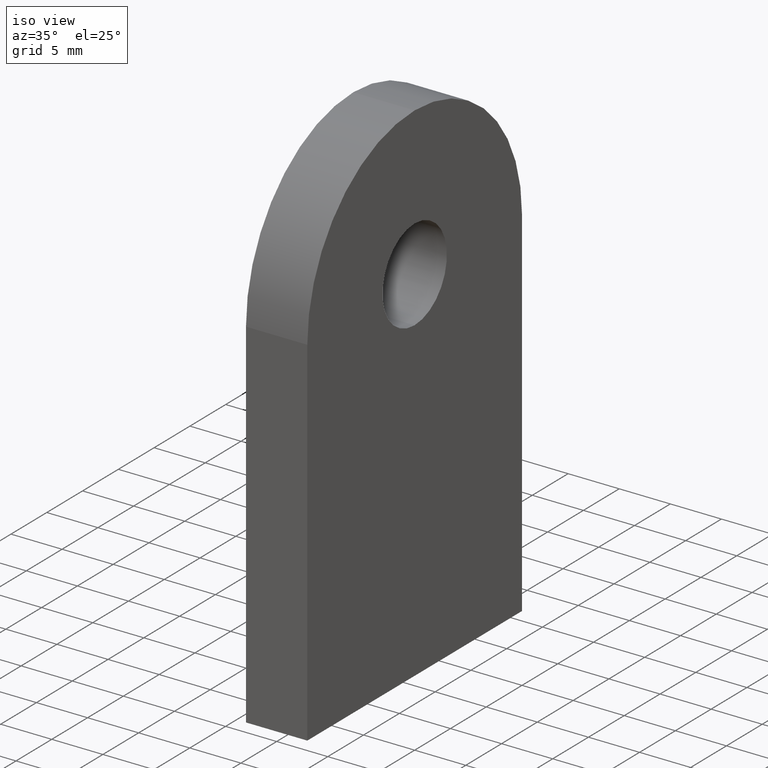
[diagram: clean part render]
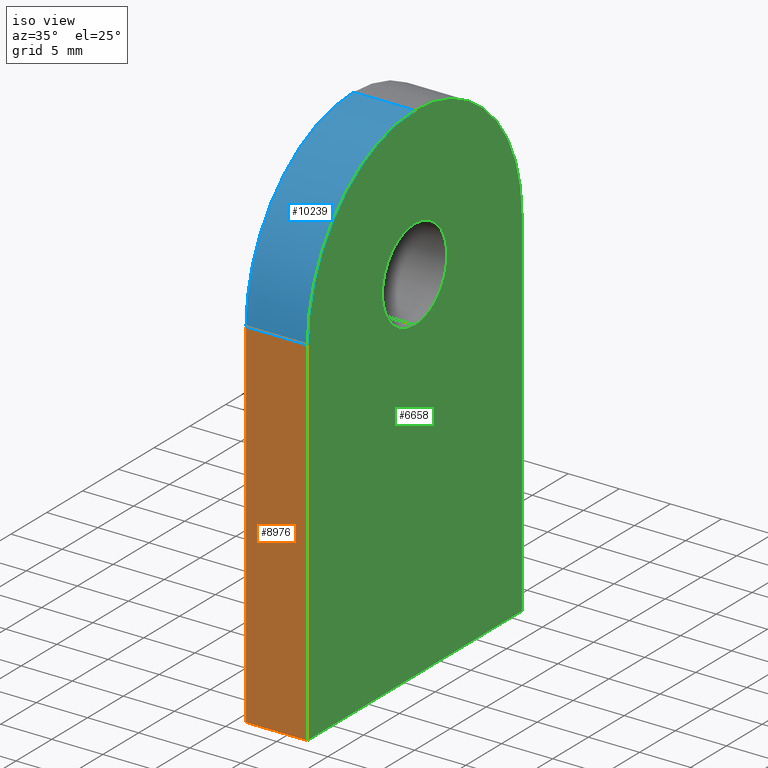
[diagram: same view with three faces highlighted in distinct colors, each labeled with its STEP entity id]
A machine part, iso view with three faces highlighted in distinct colors.
Their STEP definitions:

[orange] entity #8976 — the highlighted planar face has unit normal (0, -1, 0).
#136 = VERTEX_POINT ( 'NONE', #8477 ) ;
#283 = EDGE_CURVE ( 'NONE', #136, #7405, #11084, .T. ) ;
#911 = VECTOR ( 'NONE', #9757, 1000.000000000000000 ) ;
#1063 = DIRECTION ( 'NONE',  ( -1.000000000000000000, -0.0000000000000000000, -0.0000000000000000000 ) ) ;
#1548 = DIRECTION ( 'NONE',  ( 0.0000000000000000000, -4.956352788505162800E-017, -1.000000000000000000 ) ) ;
#1628 = VECTOR ( 'NONE', #1063, 1000.000000000000000 ) ;
#1679 = DIRECTION ( 'NONE',  ( 0.0000000000000000000, -1.000000000000000000, 4.956352788505162800E-017 ) ) ;
#3079 = VECTOR ( 'NONE', #11183, 1000.000000000000000 ) ;
#3239 = LINE ( 'NONE', #5498, #10585 ) ;
#3256 = ORIENTED_EDGE ( 'NONE', *, *, #9315, .F. ) ;
#3283 = EDGE_CURVE ( 'NONE', #6825, #7405, #3239, .T. ) ;
#3591 = DIRECTION ( 'NONE',  ( 0.0000000000000000000, 4.956352788505163400E-017, 1.000000000000000000 ) ) ;
#3858 = EDGE_CURVE ( 'NONE', #7786, #136, #10735, .T. ) ;
#4113 = CARTESIAN_POINT ( 'NONE',  ( -3.000000000000000000, -15.00000000000000000, -3.061616997868383000E-015 ) ) ;
#4500 = CARTESIAN_POINT ( 'NONE',  ( 3.000000000000000000, -15.00000000000000000, -3.061616997868383000E-015 ) ) ;
#5009 = CARTESIAN_POINT ( 'NONE',  ( 3.000000000000000000, -15.00000000000000000, -3.061616997868383000E-015 ) ) ;
#5133 = EDGE_LOOP ( 'NONE', ( #8323, #3256, #8966, #10580 ) ) ;
#5498 = CARTESIAN_POINT ( 'NONE',  ( -3.000000000000000000, -15.00000000000000000, -3.061616997868383000E-015 ) ) ;
#6825 = VERTEX_POINT ( 'NONE', #4113 ) ;
#6864 = CARTESIAN_POINT ( 'NONE',  ( 3.000000000000000000, -15.00000000000000000, -3.061616997868383000E-015 ) ) ;
#6961 = AXIS2_PLACEMENT_3D ( 'NONE', #8291, #1679, #1548 ) ;
#7405 = VERTEX_POINT ( 'NONE', #11460 ) ;
#7770 = CARTESIAN_POINT ( 'NONE',  ( 3.000000000000000000, -14.99999999999999800, 34.99999999999999300 ) ) ;
#7786 = VERTEX_POINT ( 'NONE', #5009 ) ;
#7967 = FACE_OUTER_BOUND ( 'NONE', #5133, .T. ) ;
#8291 = CARTESIAN_POINT ( 'NONE',  ( 3.000000000000000000, -15.00000000000000000, -3.061616997868383000E-015 ) ) ;
#8323 = ORIENTED_EDGE ( 'NONE', *, *, #3283, .F. ) ;
#8477 = CARTESIAN_POINT ( 'NONE',  ( 3.000000000000000000, -14.99999999999999800, 34.99999999999999300 ) ) ;
#8966 = ORIENTED_EDGE ( 'NONE', *, *, #3858, .T. ) ;
#8976 = ADVANCED_FACE ( 'NONE', ( #7967 ), #10143, .T. ) ;
#9018 = LINE ( 'NONE', #6864, #911 ) ;
#9315 = EDGE_CURVE ( 'NONE', #7786, #6825, #9018, .T. ) ;
#9757 = DIRECTION ( 'NONE',  ( -1.000000000000000000, -0.0000000000000000000, -0.0000000000000000000 ) ) ;
#10143 = PLANE ( 'NONE',  #6961 ) ;
#10580 = ORIENTED_EDGE ( 'NONE', *, *, #283, .T. ) ;
#10585 = VECTOR ( 'NONE', #3591, 1000.000000000000000 ) ;
#10735 = LINE ( 'NONE', #4500, #3079 ) ;
#11084 = LINE ( 'NONE', #7770, #1628 ) ;
#11183 = DIRECTION ( 'NONE',  ( 0.0000000000000000000, 4.956352788505163400E-017, 1.000000000000000000 ) ) ;
#11460 = CARTESIAN_POINT ( 'NONE',  ( -3.000000000000000000, -14.99999999999999800, 34.99999999999999300 ) ) ;

[blue] entity #10239 — the highlighted cylindrical surface (partial cylindrical patch) has radius 15 mm, axis along (-1, -0, -0).
#136 = VERTEX_POINT ( 'NONE', #8477 ) ;
#283 = EDGE_CURVE ( 'NONE', #136, #7405, #11084, .T. ) ;
#610 = EDGE_LOOP ( 'NONE', ( #1114, #3165, #4184, #2729 ) ) ;
#755 = CARTESIAN_POINT ( 'NONE',  ( 3.000000000000000000, 0.0000000000000000000, 49.99999999999999300 ) ) ;
#1063 = DIRECTION ( 'NONE',  ( -1.000000000000000000, -0.0000000000000000000, -0.0000000000000000000 ) ) ;
#1114 = ORIENTED_EDGE ( 'NONE', *, *, #11859, .T. ) ;
#1628 = VECTOR ( 'NONE', #1063, 1000.000000000000000 ) ;
#1865 = CARTESIAN_POINT ( 'NONE',  ( 3.000000000000000000, 0.0000000000000000000, 49.99999999999999300 ) ) ;
#2729 = ORIENTED_EDGE ( 'NONE', *, *, #283, .F. ) ;
#2930 = CIRCLE ( 'NONE', #10595, 15.00000000000000000 ) ;
#3165 = ORIENTED_EDGE ( 'NONE', *, *, #6086, .T. ) ;
#3587 = DIRECTION ( 'NONE',  ( -1.000000000000000000, -0.0000000000000000000, 0.0000000000000000000 ) ) ;
#3801 = DIRECTION ( 'NONE',  ( -1.000000000000000000, -0.0000000000000000000, -0.0000000000000000000 ) ) ;
#3835 = CIRCLE ( 'NONE', #6700, 15.00000000000000000 ) ;
#3842 = AXIS2_PLACEMENT_3D ( 'NONE', #4424, #7346, #11194 ) ;
#4053 = DIRECTION ( 'NONE',  ( -1.000000000000000000, -0.0000000000000000000, 0.0000000000000000000 ) ) ;
#4184 = ORIENTED_EDGE ( 'NONE', *, *, #4347, .F. ) ;
#4347 = EDGE_CURVE ( 'NONE', #7405, #5122, #3835, .T. ) ;
#4424 = CARTESIAN_POINT ( 'NONE',  ( 3.000000000000000000, 0.0000000000000000000, 34.99999999999999300 ) ) ;
#5122 = VERTEX_POINT ( 'NONE', #7254 ) ;
#5773 = VECTOR ( 'NONE', #3801, 1000.000000000000000 ) ;
#6086 = EDGE_CURVE ( 'NONE', #6719, #5122, #6507, .T. ) ;
#6130 = CYLINDRICAL_SURFACE ( 'NONE', #3842, 15.00000000000000000 ) ;
#6507 = LINE ( 'NONE', #1865, #5773 ) ;
#6559 = DIRECTION ( 'NONE',  ( 0.0000000000000000000, 0.0000000000000000000, 1.000000000000000000 ) ) ;
#6700 = AXIS2_PLACEMENT_3D ( 'NONE', #7406, #3587, #6559 ) ;
#6719 = VERTEX_POINT ( 'NONE', #755 ) ;
#7254 = CARTESIAN_POINT ( 'NONE',  ( -3.000000000000000000, 0.0000000000000000000, 49.99999999999999300 ) ) ;
#7346 = DIRECTION ( 'NONE',  ( -1.000000000000000000, -0.0000000000000000000, -0.0000000000000000000 ) ) ;
#7405 = VERTEX_POINT ( 'NONE', #11460 ) ;
#7406 = CARTESIAN_POINT ( 'NONE',  ( -3.000000000000000000, 0.0000000000000000000, 34.99999999999999300 ) ) ;
#7769 = CARTESIAN_POINT ( 'NONE',  ( 3.000000000000000000, 0.0000000000000000000, 34.99999999999999300 ) ) ;
#7770 = CARTESIAN_POINT ( 'NONE',  ( 3.000000000000000000, -14.99999999999999800, 34.99999999999999300 ) ) ;
#8477 = CARTESIAN_POINT ( 'NONE',  ( 3.000000000000000000, -14.99999999999999800, 34.99999999999999300 ) ) ;
#9106 = FACE_OUTER_BOUND ( 'NONE', #610, .T. ) ;
#9797 = DIRECTION ( 'NONE',  ( 0.0000000000000000000, 0.0000000000000000000, 1.000000000000000000 ) ) ;
#10239 = ADVANCED_FACE ( 'NONE', ( #9106 ), #6130, .T. ) ;
#10595 = AXIS2_PLACEMENT_3D ( 'NONE', #7769, #4053, #9797 ) ;
#11084 = LINE ( 'NONE', #7770, #1628 ) ;
#11194 = DIRECTION ( 'NONE',  ( 0.0000000000000000000, 0.0000000000000000000, 1.000000000000000000 ) ) ;
#11460 = CARTESIAN_POINT ( 'NONE',  ( -3.000000000000000000, -14.99999999999999800, 34.99999999999999300 ) ) ;
#11859 = EDGE_CURVE ( 'NONE', #136, #6719, #2930, .T. ) ;

[green] entity #6658 — the highlighted planar face has unit normal (-1, -0, 0).
#51 = EDGE_CURVE ( 'NONE', #5100, #8930, #252, .T. ) ;
#136 = VERTEX_POINT ( 'NONE', #8477 ) ;
#252 = CIRCLE ( 'NONE', #12067, 4.500000000000000900 ) ;
#279 = CARTESIAN_POINT ( 'NONE',  ( 3.000000000000000000, 15.00000000000000000, -3.061616997868383000E-015 ) ) ;
#755 = CARTESIAN_POINT ( 'NONE',  ( 3.000000000000000000, 0.0000000000000000000, 49.99999999999999300 ) ) ;
#818 = ORIENTED_EDGE ( 'NONE', *, *, #8364, .F. ) ;
#1075 = LINE ( 'NONE', #10584, #2597 ) ;
#1245 = FACE_BOUND ( 'NONE', #10602, .T. ) ;
#2302 = DIRECTION ( 'NONE',  ( 0.0000000000000000000, 4.956352788505163400E-017, -1.000000000000000000 ) ) ;
#2531 = CARTESIAN_POINT ( 'NONE',  ( 3.000000000000000000, 0.0000000000000000000, 30.99999999999999600 ) ) ;
#2597 = VECTOR ( 'NONE', #3803, 1000.000000000000000 ) ;
#2708 = ORIENTED_EDGE ( 'NONE', *, *, #5937, .F. ) ;
#2839 = CARTESIAN_POINT ( 'NONE',  ( 3.000000000000000000, 0.0000000000000000000, 34.99999999999999300 ) ) ;
#2930 = CIRCLE ( 'NONE', #10595, 15.00000000000000000 ) ;
#3079 = VECTOR ( 'NONE', #11183, 1000.000000000000000 ) ;
#3275 = DIRECTION ( 'NONE',  ( 1.000000000000000000, 0.0000000000000000000, 0.0000000000000000000 ) ) ;
#3506 = CIRCLE ( 'NONE', #4482, 4.500000000000000900 ) ;
#3803 = DIRECTION ( 'NONE',  ( 0.0000000000000000000, -1.000000000000000000, 0.0000000000000000000 ) ) ;
#3858 = EDGE_CURVE ( 'NONE', #7786, #136, #10735, .T. ) ;
#4053 = DIRECTION ( 'NONE',  ( -1.000000000000000000, -0.0000000000000000000, 0.0000000000000000000 ) ) ;
#4240 = CARTESIAN_POINT ( 'NONE',  ( 3.000000000000000000, 14.99999999999999800, 34.99999999999999300 ) ) ;
#4321 = CARTESIAN_POINT ( 'NONE',  ( 3.000000000000000000, 5.510910596163087600E-016, 40.00000000000000000 ) ) ;
#4482 = AXIS2_PLACEMENT_3D ( 'NONE', #8331, #5466, #8243 ) ;
#4500 = CARTESIAN_POINT ( 'NONE',  ( 3.000000000000000000, -15.00000000000000000, -3.061616997868383000E-015 ) ) ;
#4533 = ORIENTED_EDGE ( 'NONE', *, *, #11859, .F. ) ;
#5009 = CARTESIAN_POINT ( 'NONE',  ( 3.000000000000000000, -15.00000000000000000, -3.061616997868383000E-015 ) ) ;
#5100 = VERTEX_POINT ( 'NONE', #4321 ) ;
#5466 = DIRECTION ( 'NONE',  ( 1.000000000000000000, 0.0000000000000000000, 0.0000000000000000000 ) ) ;
#5700 = EDGE_CURVE ( 'NONE', #8930, #5100, #3506, .T. ) ;
#5763 = CIRCLE ( 'NONE', #7217, 15.00000000000000000 ) ;
#5937 = EDGE_CURVE ( 'NONE', #11702, #7588, #6522, .T. ) ;
#6139 = DIRECTION ( 'NONE',  ( 0.0000000000000000000, 0.0000000000000000000, -1.000000000000000000 ) ) ;
#6210 = VECTOR ( 'NONE', #2302, 1000.000000000000000 ) ;
#6318 = ORIENTED_EDGE ( 'NONE', *, *, #51, .F. ) ;
#6522 = LINE ( 'NONE', #4240, #6210 ) ;
#6523 = EDGE_CURVE ( 'NONE', #6719, #11702, #5763, .T. ) ;
#6658 = ADVANCED_FACE ( 'NONE', ( #1245, #7275 ), #10243, .F. ) ;
#6719 = VERTEX_POINT ( 'NONE', #755 ) ;
#6858 = ORIENTED_EDGE ( 'NONE', *, *, #6523, .F. ) ;
#7217 = AXIS2_PLACEMENT_3D ( 'NONE', #2839, #10518, #7775 ) ;
#7275 = FACE_OUTER_BOUND ( 'NONE', #12143, .T. ) ;
#7439 = AXIS2_PLACEMENT_3D ( 'NONE', #11213, #12219, #10285 ) ;
#7588 = VERTEX_POINT ( 'NONE', #279 ) ;
#7769 = CARTESIAN_POINT ( 'NONE',  ( 3.000000000000000000, 0.0000000000000000000, 34.99999999999999300 ) ) ;
#7775 = DIRECTION ( 'NONE',  ( 0.0000000000000000000, 0.0000000000000000000, 1.000000000000000000 ) ) ;
#7786 = VERTEX_POINT ( 'NONE', #5009 ) ;
#8046 = ORIENTED_EDGE ( 'NONE', *, *, #3858, .F. ) ;
#8084 = CARTESIAN_POINT ( 'NONE',  ( 3.000000000000000000, 0.0000000000000000000, 35.50000000000000000 ) ) ;
#8243 = DIRECTION ( 'NONE',  ( 0.0000000000000000000, 0.0000000000000000000, -1.000000000000000000 ) ) ;
#8331 = CARTESIAN_POINT ( 'NONE',  ( 3.000000000000000000, 0.0000000000000000000, 35.50000000000000000 ) ) ;
#8364 = EDGE_CURVE ( 'NONE', #7588, #7786, #1075, .T. ) ;
#8477 = CARTESIAN_POINT ( 'NONE',  ( 3.000000000000000000, -14.99999999999999800, 34.99999999999999300 ) ) ;
#8930 = VERTEX_POINT ( 'NONE', #2531 ) ;
#9797 = DIRECTION ( 'NONE',  ( 0.0000000000000000000, 0.0000000000000000000, 1.000000000000000000 ) ) ;
#10243 = PLANE ( 'NONE',  #7439 ) ;
#10285 = DIRECTION ( 'NONE',  ( 0.0000000000000000000, 0.0000000000000000000, 1.000000000000000000 ) ) ;
#10518 = DIRECTION ( 'NONE',  ( -1.000000000000000000, -0.0000000000000000000, 0.0000000000000000000 ) ) ;
#10584 = CARTESIAN_POINT ( 'NONE',  ( 3.000000000000000000, 15.00000000000000000, -3.061616997868383000E-015 ) ) ;
#10595 = AXIS2_PLACEMENT_3D ( 'NONE', #7769, #4053, #9797 ) ;
#10602 = EDGE_LOOP ( 'NONE', ( #10818, #6318 ) ) ;
#10735 = LINE ( 'NONE', #4500, #3079 ) ;
#10818 = ORIENTED_EDGE ( 'NONE', *, *, #5700, .F. ) ;
#11183 = DIRECTION ( 'NONE',  ( 0.0000000000000000000, 4.956352788505163400E-017, 1.000000000000000000 ) ) ;
#11213 = CARTESIAN_POINT ( 'NONE',  ( 3.000000000000000000, 0.0000000000000000000, 34.99999999999999300 ) ) ;
#11261 = CARTESIAN_POINT ( 'NONE',  ( 3.000000000000000000, 14.99999999999999800, 34.99999999999999300 ) ) ;
#11702 = VERTEX_POINT ( 'NONE', #11261 ) ;
#11859 = EDGE_CURVE ( 'NONE', #136, #6719, #2930, .T. ) ;
#12067 = AXIS2_PLACEMENT_3D ( 'NONE', #8084, #3275, #6139 ) ;
#12143 = EDGE_LOOP ( 'NONE', ( #4533, #8046, #818, #2708, #6858 ) ) ;
#12219 = DIRECTION ( 'NONE',  ( -1.000000000000000000, -0.0000000000000000000, 0.0000000000000000000 ) ) ;